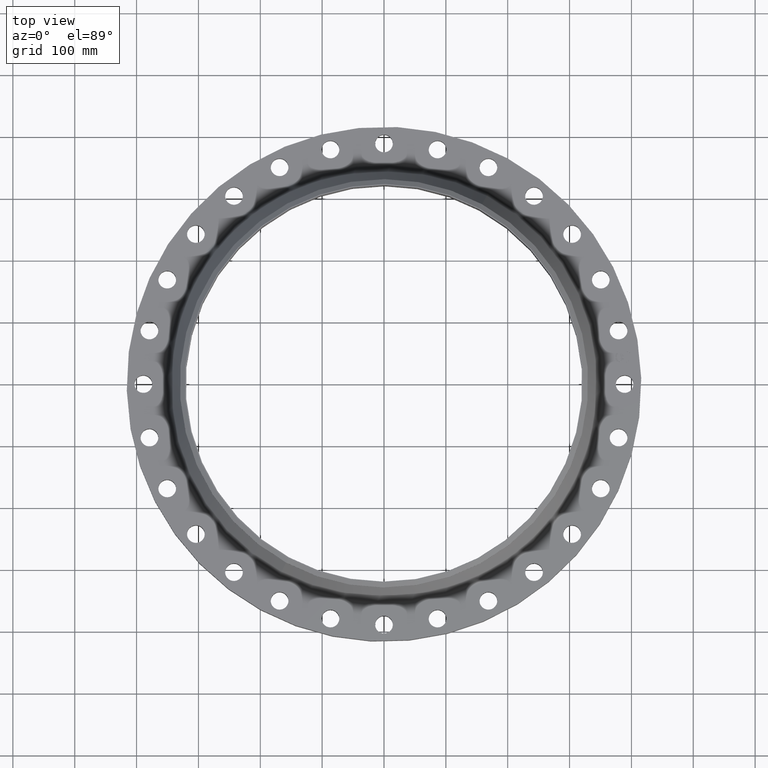
[diagram: clean part render]
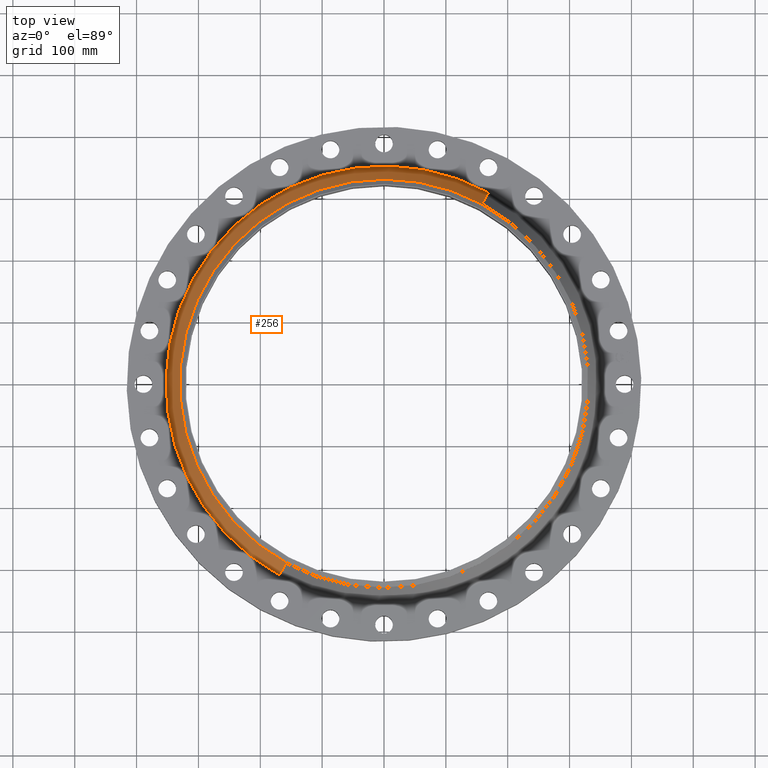
[diagram: same view with one face highlighted and labeled with its STEP entity id]
A machine part, top view. The second image highlights one B-rep face of the part: STEP entity #256.
In plain terms, the highlighted conical surface has half-angle 24.912 deg.
Its self-contained STEP definition (entity closure, byte-faithful):
#204=AXIS2_PLACEMENT_3D('Circle Axis2P3D',#202,#203,$) ;
#217=AXIS2_PLACEMENT_3D('Cone Axis2P3D',#214,#215,#216) ;
#247=AXIS2_PLACEMENT_3D('Circle Axis2P3D',#245,#246,$) ;
#175=CARTESIAN_POINT('Vertex',(6.65097424101,12.1745266856,2.64469540812)) ;
#182=CARTESIAN_POINT('Vertex',(-6.65097424101,-12.1745266856,2.64469540812)) ;
#202=CARTESIAN_POINT('Axis2P3D Location',(0.,0.,2.64469540812)) ;
#214=CARTESIAN_POINT('Axis2P3D Location',(0.,0.,4.52398984383)) ;
#219=CARTESIAN_POINT('Line Origine',(6.44175312144,11.7915499951,3.58434262598)) ;
#223=CARTESIAN_POINT('Vertex',(6.23253200188,11.4085733046,4.52398984383)) ;
#230=CARTESIAN_POINT('Vertex',(-6.23253200188,-11.4085733046,4.52398984383)) ;
#233=CARTESIAN_POINT('Line Origine',(-6.44175312144,-11.7915499951,3.58434262598)) ;
#245=CARTESIAN_POINT('Axis2P3D Location',(0.,0.,4.52398984383)) ;
#203=DIRECTION('Axis2P3D Direction',(0.,0.,-0.0393700787402)) ;
#215=DIRECTION('Axis2P3D Direction',(0.,0.,-0.0393700787402)) ;
#216=DIRECTION('Axis2P3D XDirection',(-0.0188750212049,-0.0345504945626,0.)) ;
#220=DIRECTION('Vector Direction',(0.00795050561934,0.0145533029176,-0.0357070572099)) ;
#234=DIRECTION('Vector Direction',(-0.00795050561934,-0.0145533029176,-0.0357070572099)) ;
#246=DIRECTION('Axis2P3D Direction',(0.,0.,-0.0393700787402)) ;
#221=VECTOR('Line Direction',#220,0.0393700787402) ;
#235=VECTOR('Line Direction',#234,0.0393700787402) ;
#251=ORIENTED_EDGE('',*,*,#206,.F.) ;
#252=ORIENTED_EDGE('',*,*,#237,.T.) ;
#253=ORIENTED_EDGE('',*,*,#249,.T.) ;
#254=ORIENTED_EDGE('',*,*,#225,.F.) ;
#256=ADVANCED_FACE('PartBody',(#255),#218,.T.) ;
#205=CIRCLE('generated circle',#204,13.8727992263) ;
#248=CIRCLE('generated circle',#247,13.0000000001) ;
#218=CONICAL_SURFACE('Cone',#217,13.0000000001,0.434788255907) ;
#206=EDGE_CURVE('',#183,#176,#205,.T.) ;
#225=EDGE_CURVE('',#176,#224,#222,.F.) ;
#237=EDGE_CURVE('',#183,#231,#236,.F.) ;
#249=EDGE_CURVE('',#231,#224,#248,.T.) ;
#250=EDGE_LOOP('',(#251,#252,#253,#254)) ;
#255=FACE_OUTER_BOUND('',#250,.T.) ;
#222=LINE('Line',#219,#221) ;
#236=LINE('Line',#233,#235) ;
#176=VERTEX_POINT('',#175) ;
#183=VERTEX_POINT('',#182) ;
#224=VERTEX_POINT('',#223) ;
#231=VERTEX_POINT('',#230) ;